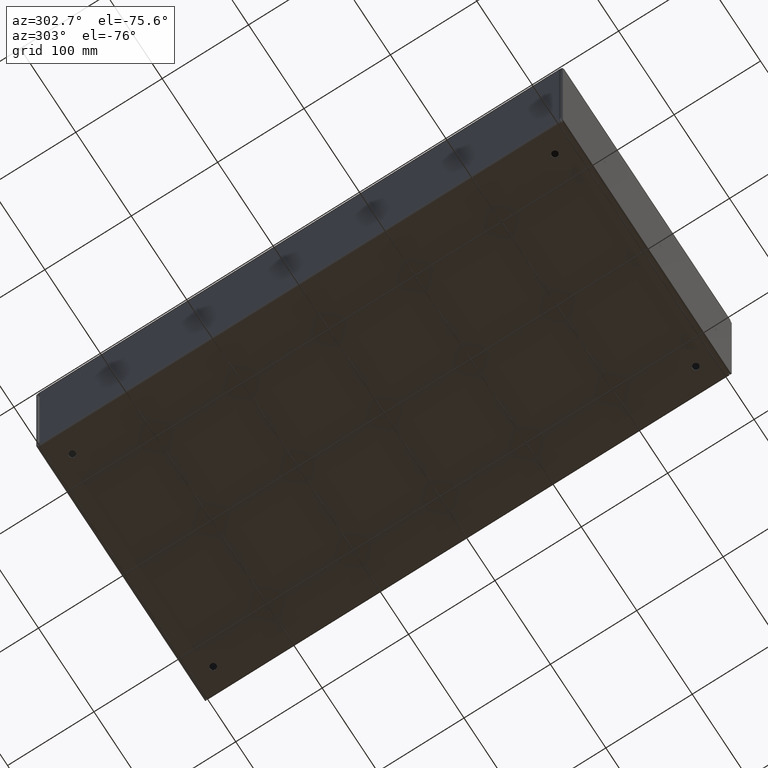
[diagram: clean part render]
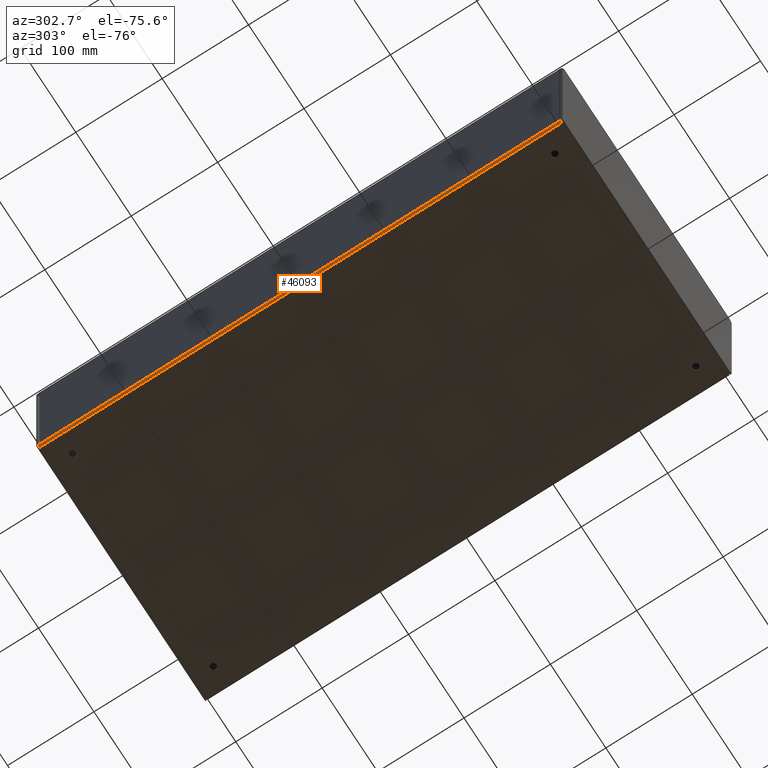
[diagram: same view with one face highlighted and labeled with its STEP entity id]
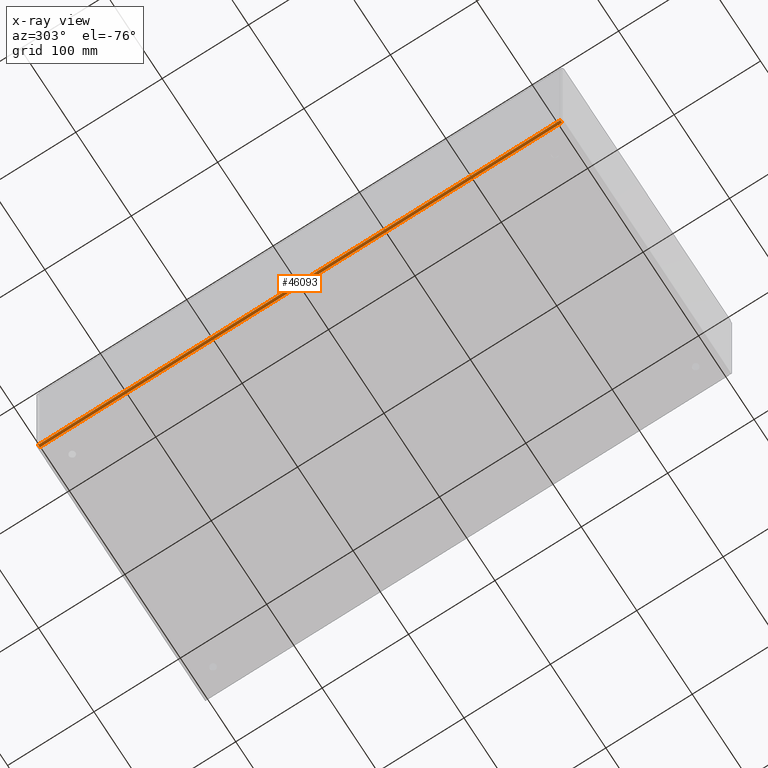
[diagram: x-ray of the same camera — body ghosted, the highlighted face saturated]
A machine part, auxiliary view. The second image highlights one B-rep face of the part: STEP entity #46093.
The next image is the same camera in x-ray: the body ghosted, the highlighted face saturated — about 0% of this face is hidden behind the body in this view.
In plain terms, the highlighted cylindrical surface (edge-blend (fillet) strip) has radius 2.5146 mm, axis along (0, 1, 0).
Its self-contained STEP definition (entity closure, byte-faithful):
#6210=FACE_OUTER_BOUND('',#8728,.T.);
#8728=EDGE_LOOP('',(#33494,#33495,#33496,#33497));
#11653=LINE('',#61161,#16578);
#11697=LINE('',#61702,#16622);
#16578=VECTOR('',#51703,0.393700787401575);
#16622=VECTOR('',#51867,0.393700787401575);
#21200=CIRCLE('',#48848,0.099);
#21213=CIRCLE('',#48889,0.099);
#21752=VERTEX_POINT('',#61158);
#21753=VERTEX_POINT('',#61160);
#21755=VERTEX_POINT('',#61181);
#21773=VERTEX_POINT('',#61274);
#26284=EDGE_CURVE('',#21752,#21753,#11653,.T.);
#26296=EDGE_CURVE('',#21755,#21752,#21200,.T.);
#26342=EDGE_CURVE('',#21773,#21753,#21213,.T.);
#26358=EDGE_CURVE('',#21773,#21755,#11697,.T.);
#33494=ORIENTED_EDGE('',*,*,#26284,.F.);
#33495=ORIENTED_EDGE('',*,*,#26296,.F.);
#33496=ORIENTED_EDGE('',*,*,#26358,.F.);
#33497=ORIENTED_EDGE('',*,*,#26342,.T.);
#45776=CYLINDRICAL_SURFACE('',#48894,0.099);
#46093=ADVANCED_FACE('',(#6210),#45776,.T.);
#48848=AXIS2_PLACEMENT_3D('',#61183,#51736,#51737);
#48889=AXIS2_PLACEMENT_3D('',#61275,#51851,#51852);
#48894=AXIS2_PLACEMENT_3D('',#61701,#51865,#51866);
#51703=DIRECTION('',(-1.09634755134407E-17,-1.,0.));
#51736=DIRECTION('center_axis',(0.,1.,0.));
#51737=DIRECTION('ref_axis',(4.51195539598743E-14,4.51195539598743E-14,
-1.));
#51851=DIRECTION('center_axis',(0.,1.,0.));
#51852=DIRECTION('ref_axis',(4.51195539598743E-14,4.51195539598743E-14,
-1.));
#51865=DIRECTION('center_axis',(0.,1.,0.));
#51866=DIRECTION('ref_axis',(4.51195539598743E-14,4.51195539598743E-14,
-1.));
#51867=DIRECTION('',(0.,1.,0.));
#61158=CARTESIAN_POINT('',(-6.,11.901,0.099));
#61160=CARTESIAN_POINT('',(-6.,-11.901,0.099));
#61161=CARTESIAN_POINT('',(-6.,-5.9505,0.0989999999999999));
#61181=CARTESIAN_POINT('',(-5.901,11.901,0.));
#61183=CARTESIAN_POINT('Origin',(-5.901,11.901,0.099));
#61274=CARTESIAN_POINT('',(-5.901,-11.901,0.));
#61275=CARTESIAN_POINT('Origin',(-5.901,-11.901,0.099));
#61701=CARTESIAN_POINT('Origin',(-5.901,-2.79741234551221E-15,0.099));
#61702=CARTESIAN_POINT('',(-5.901,5.9505,0.));